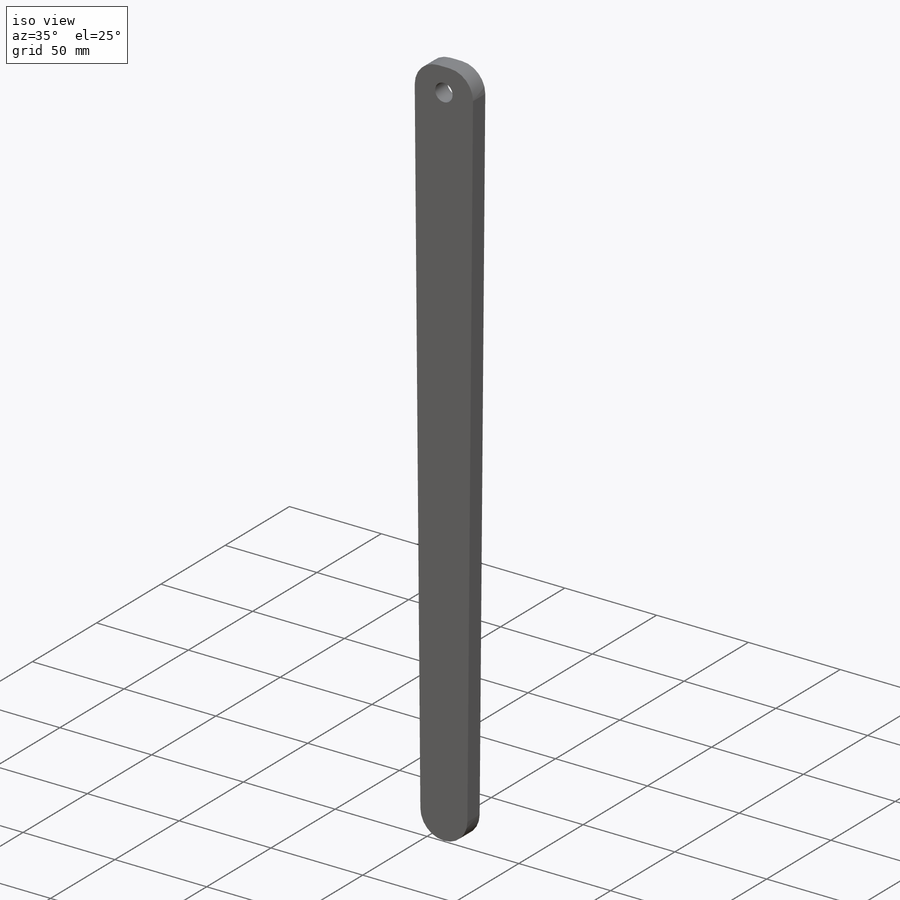
[diagram: iso view]
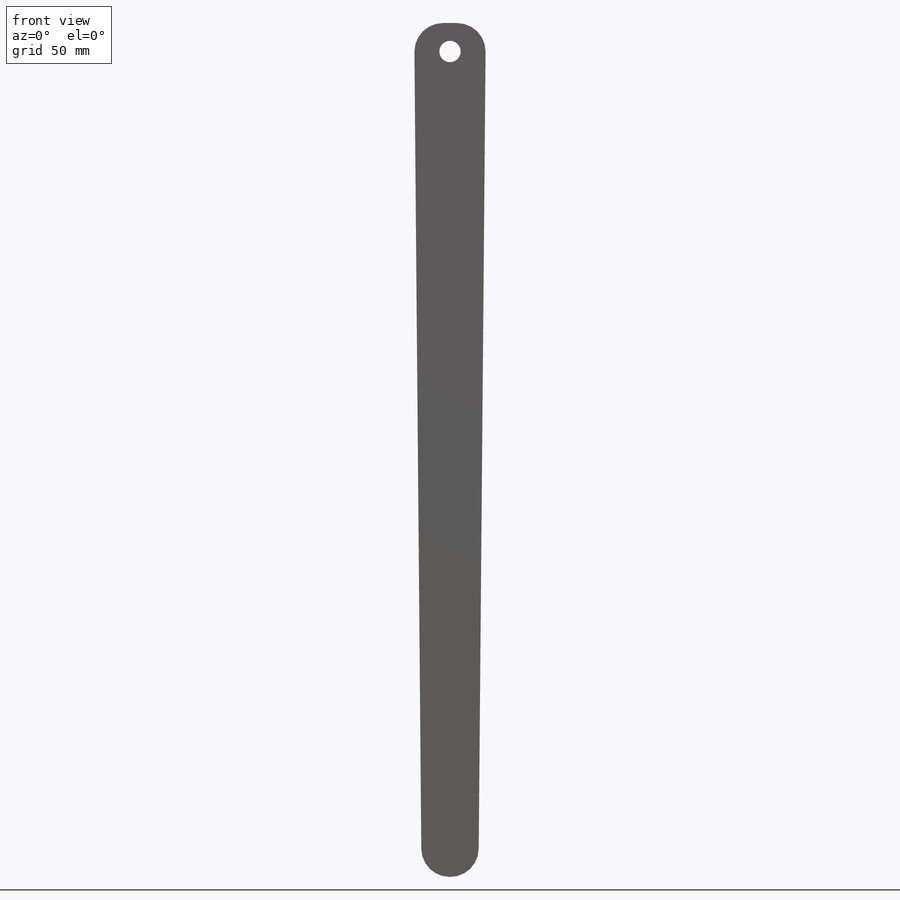
[diagram: front view]
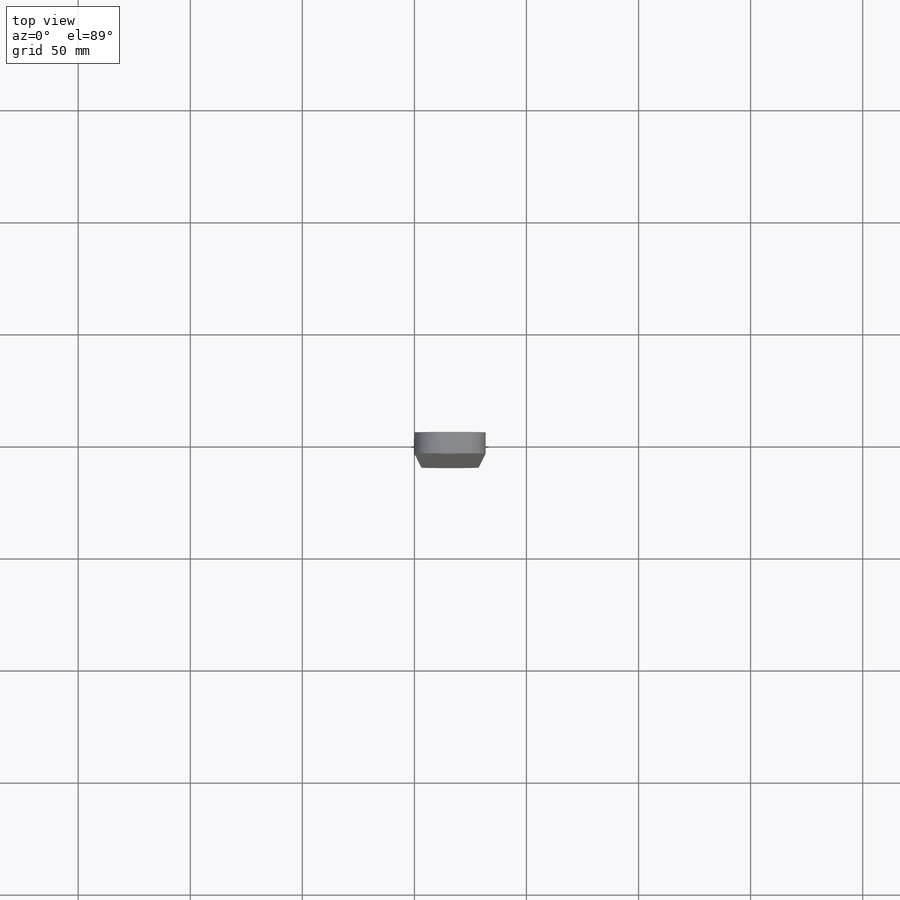
[diagram: top view]
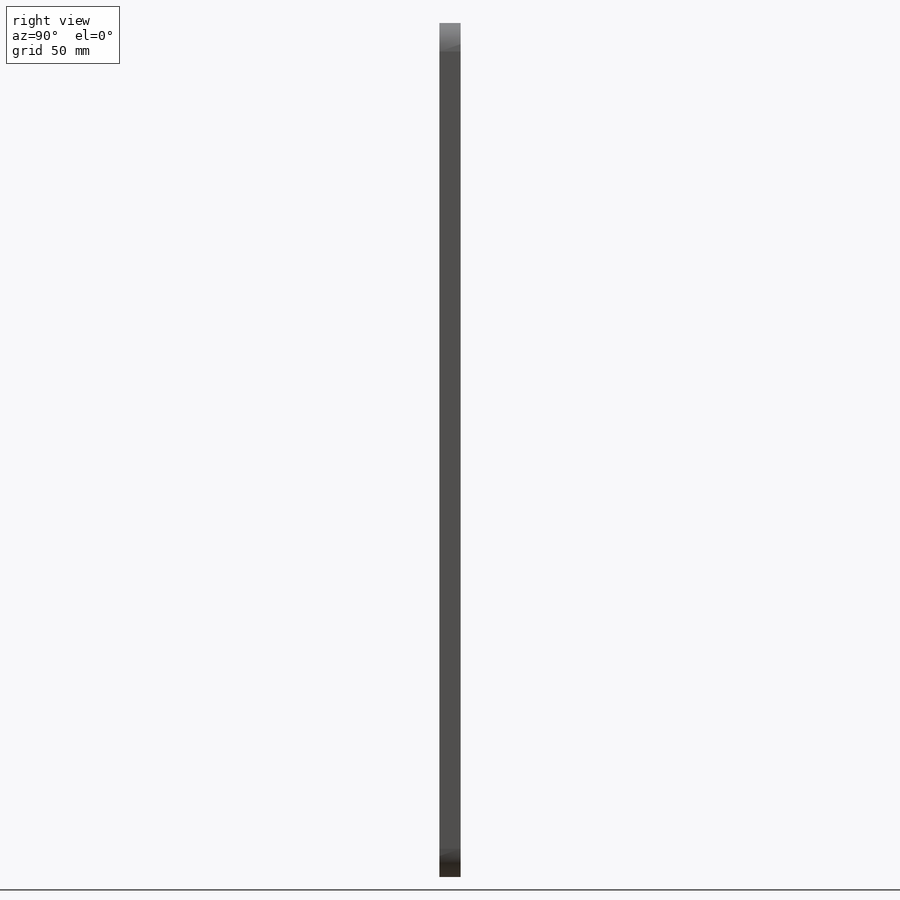
[diagram: right view]
SOLIDWORKS PART (.sldprt)
format: sldprt  version: not decoded by parser v0  size: 230,912 bytes
history: native  units: mm
features: sketch x6, fillet x3, hole x2, material x1, extrude x1, chamfer x1, cut_extrude x1 (+13 scaffold rows collapsed)
feature tree (28):
  scaffold x13  (default folders/planes/origin — collapsed)
  material  "Material <not specified>"
  sketch  "Sketch1"  dims[c1.D1=381.0mm c1.D2=25.4mm c2.D1=31.75mm c2.D2=381.0mm]
  extrude  "Boss-Extrude1"  Depth=9.525mm
  fillet  "Fillet1"  Radius=12.7mm
  chamfer  "Chamfer1"  Distance=3.175mm
  fillet  "Fillet2"  Radius=12.7mm
  sketch  "Sketch5"  dims[c1.D1=~81.874413mm c1.D2=~27.462881mm c2.D1=31.75mm]
  cut_extrude  "Cut-Extrude1"  [1 undecoded]
  hole  "CSK for #8 Flat Head Machine Screw (100)1"  Diameter=4.4958mm Depth=9.525mm
  sketch  "Sketch6"
  sketch  "Sketch7"  dims[hole-wizard template sketch: 55 standard entries collapsed; hole parameters kept: c17.Thru Hole Depth=9.525mm c17.Near C'Sink Dia.=8.4328mm c17.D4=~3.666174mm c17.Near C'Sink Angle=100.0deg]
  fillet  "Fillet3"  Radius=2.54mm
  hole  "#8 Clearance Hole1"  Diameter=4.4958mm Depth=6.35mm
  sketch  "Sketch8"
  sketch  "Sketch9"  dims[hole-wizard template sketch: 60 standard entries collapsed; hole parameters kept: c18.Thru Hole Depth=6.35mm]
decode coverage: 11 of 14 modeling features carry decoded parameters
note: ~ marks probable driven/reference dimensions
note: 1 parameter value undecoded
note: suppression state not decoded; provenance and decode notes live in map.json
